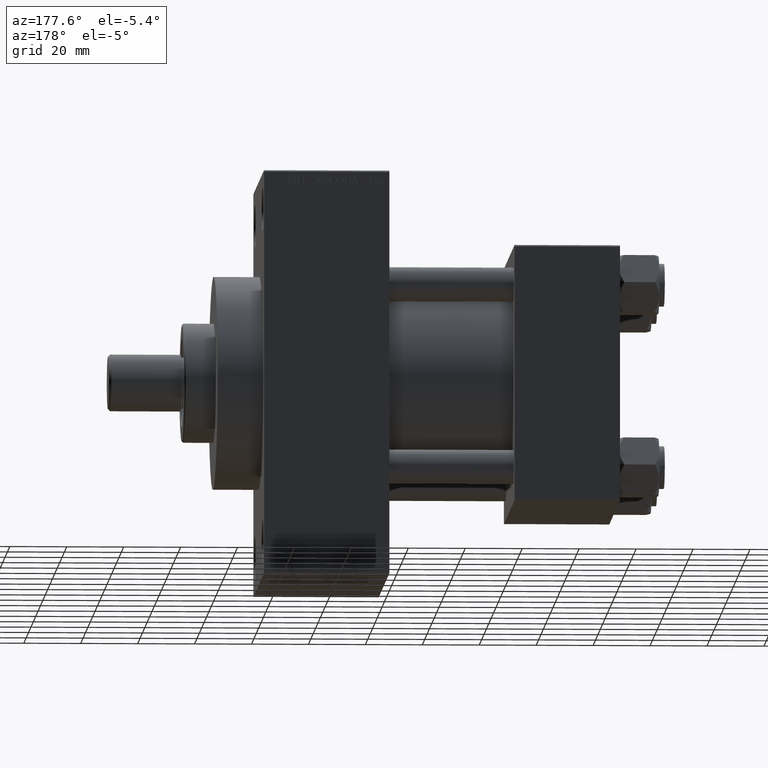
[diagram: clean part render]
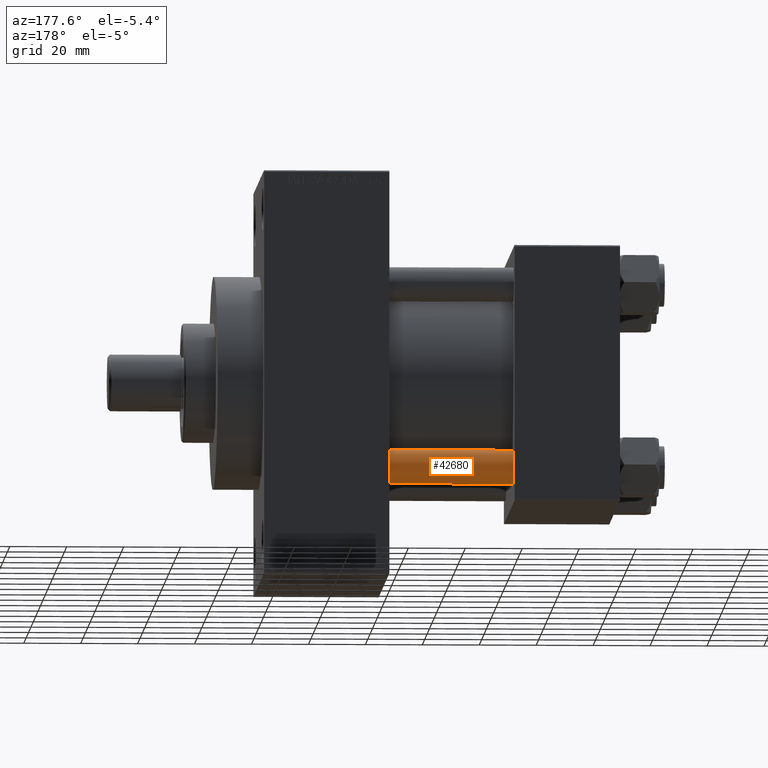
[diagram: same view with one face highlighted and labeled with its STEP entity id]
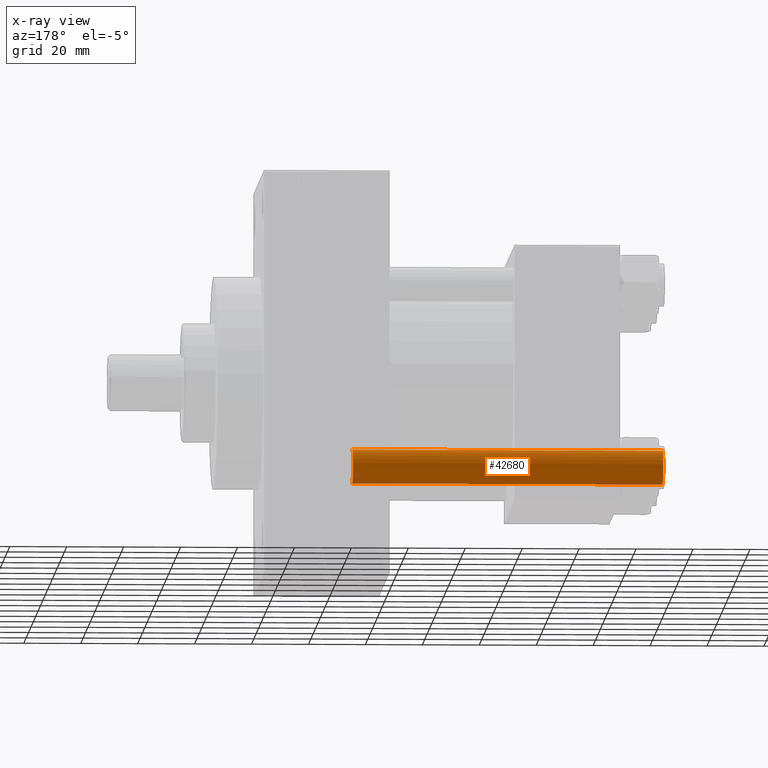
[diagram: x-ray of the same camera — body ghosted, the highlighted face saturated]
A machine part, auxiliary view. The second image highlights one B-rep face of the part: STEP entity #42680.
The next image is the same camera in x-ray: the body ghosted, the highlighted face saturated — about 0% of this face is hidden behind the body in this view.
In plain terms, the highlighted cylindrical surface (edge-blend (fillet) strip) has radius 6 mm, axis along (1, -0, 0).
Its self-contained STEP definition (entity closure, byte-faithful):
#615 = CYLINDRICAL_SURFACE ( 'NONE', #31526, 6.000000000000000888 ) ;
#1489 = CIRCLE ( 'NONE', #9964, 6.000000000000000888 ) ;
#1560 = EDGE_CURVE ( 'NONE', #15514, #40985, #32962, .T. ) ;
#3244 = DIRECTION ( 'NONE',  ( 1.000000000000000000, 0.000000000000000000, 0.000000000000000000 ) ) ;
#3931 = EDGE_CURVE ( 'NONE', #17636, #13045, #1489, .T. ) ;
#4492 = DIRECTION ( 'NONE',  ( 1.000000000000000000, 0.000000000000000000, 0.000000000000000000 ) ) ;
#4971 = CARTESIAN_POINT ( 'NONE',  ( 6.000000000000000888, 7.347880794884120722E-16, 109.5000000000000000 ) ) ;
#7355 = CARTESIAN_POINT ( 'NONE',  ( -6.000000000000000888, 0.000000000000000000, 109.5000000000000000 ) ) ;
#8799 = DIRECTION ( 'NONE',  ( -0.000000000000000000, -0.000000000000000000, -1.000000000000000000 ) ) ;
#9964 = AXIS2_PLACEMENT_3D ( 'NONE', #34339, #26892, #4492 ) ;
#13045 = VERTEX_POINT ( 'NONE', #4971 ) ;
#13353 = DIRECTION ( 'NONE',  ( -1.000000000000000000, 0.000000000000000000, 0.000000000000000000 ) ) ;
#14092 = CARTESIAN_POINT ( 'NONE',  ( 0.000000000000000000, 0.000000000000000000, 0.4999999999999726885 ) ) ;
#15303 = CARTESIAN_POINT ( 'NONE',  ( 0.000000000000000000, 0.000000000000000000, 110.0000000000000000 ) ) ;
#15514 = VERTEX_POINT ( 'NONE', #22380 ) ;
#16185 = ORIENTED_EDGE ( 'NONE', *, *, #3931, .T. ) ;
#17636 = VERTEX_POINT ( 'NONE', #7355 ) ;
#20787 = CARTESIAN_POINT ( 'NONE',  ( -6.000000000000000888, 0.000000000000000000, 0.4999999999999726885 ) ) ;
#21311 = DIRECTION ( 'NONE',  ( -0.000000000000000000, -0.000000000000000000, 1.000000000000000000 ) ) ;
#22141 = DIRECTION ( 'NONE',  ( -0.000000000000000000, -0.000000000000000000, -1.000000000000000000 ) ) ;
#22380 = CARTESIAN_POINT ( 'NONE',  ( 6.000000000000000888, 7.347880794884120722E-16, 0.4999999999999726885 ) ) ;
#24048 = DIRECTION ( 'NONE',  ( -0.000000000000000000, -0.000000000000000000, -1.000000000000000000 ) ) ;
#24282 = LINE ( 'NONE', #35107, #27560 ) ;
#26892 = DIRECTION ( 'NONE',  ( 0.000000000000000000, 0.000000000000000000, -1.000000000000000000 ) ) ;
#27560 = VECTOR ( 'NONE', #24048, 1000.000000000000000 ) ;
#31526 = AXIS2_PLACEMENT_3D ( 'NONE', #15303, #8799, #13353 ) ;
#32962 = CIRCLE ( 'NONE', #37604, 6.000000000000000888 ) ;
#32973 = ORIENTED_EDGE ( 'NONE', *, *, #39360, .F. ) ;
#33441 = ORIENTED_EDGE ( 'NONE', *, *, #1560, .T. ) ;
#33618 = FACE_OUTER_BOUND ( 'NONE', #36471, .T. ) ;
#33681 = CARTESIAN_POINT ( 'NONE',  ( 6.000000000000000888, 7.347880794884120722E-16, 110.0000000000000000 ) ) ;
#34339 = CARTESIAN_POINT ( 'NONE',  ( 0.000000000000000000, 0.000000000000000000, 109.5000000000000000 ) ) ;
#35107 = CARTESIAN_POINT ( 'NONE',  ( -6.000000000000000888, 0.000000000000000000, 110.0000000000000000 ) ) ;
#36471 = EDGE_LOOP ( 'NONE', ( #16185, #43810, #33441, #32973 ) ) ;
#36737 = VECTOR ( 'NONE', #22141, 1000.000000000000000 ) ;
#37076 = EDGE_CURVE ( 'NONE', #13045, #15514, #40457, .T. ) ;
#37604 = AXIS2_PLACEMENT_3D ( 'NONE', #14092, #21311, #3244 ) ;
#39360 = EDGE_CURVE ( 'NONE', #17636, #40985, #24282, .T. ) ;
#40457 = LINE ( 'NONE', #33681, #36737 ) ;
#40985 = VERTEX_POINT ( 'NONE', #20787 ) ;
#42680 = ADVANCED_FACE ( 'NONE', ( #33618 ), #615, .T. ) ;
#43810 = ORIENTED_EDGE ( 'NONE', *, *, #37076, .T. ) ;